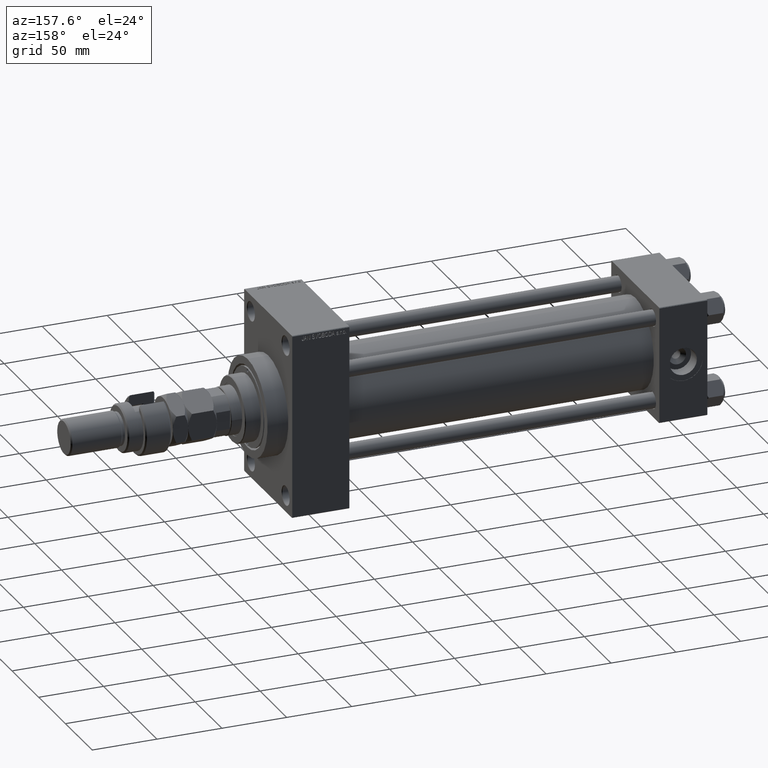
[diagram: clean part render]
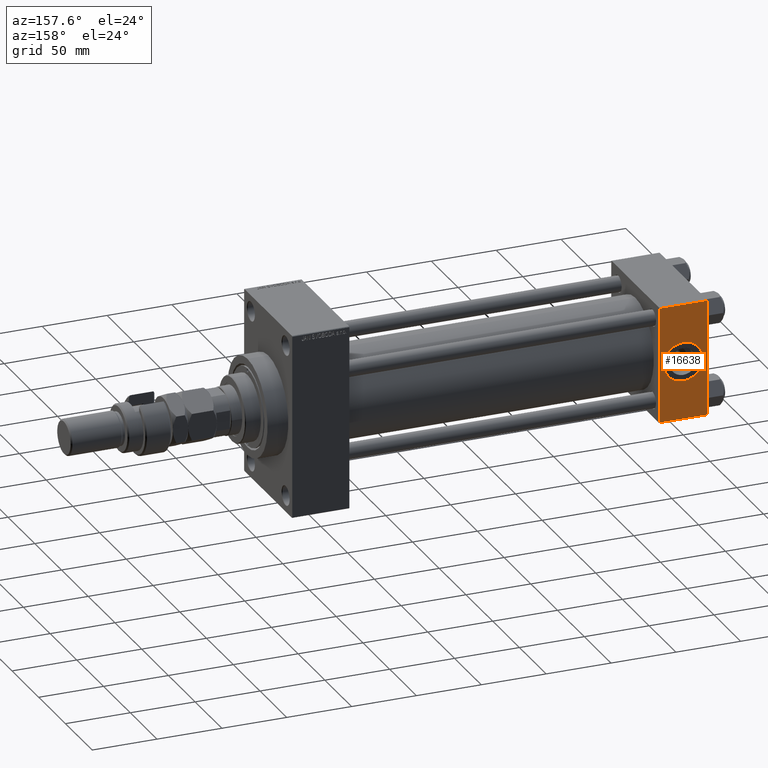
[diagram: same view with one face highlighted and labeled with its STEP entity id]
A machine part, auxiliary view. The second image highlights one B-rep face of the part: STEP entity #16638.
In plain terms, the highlighted planar face has unit normal (0, 1, 0).
Its self-contained STEP definition (entity closure, byte-faithful):
#325 = CARTESIAN_POINT ( 'NONE',  ( 37.00000000000000000, 44.99999999999998579, -44.49999999999998579 ) ) ;
#390 = VECTOR ( 'NONE', #7440, 1000.000000000000000 ) ;
#2074 = VERTEX_POINT ( 'NONE', #37824 ) ;
#2490 = CARTESIAN_POINT ( 'NONE',  ( 18.50000000000000355, 44.99999999999998579, -15.00000000000000178 ) ) ;
#2952 = CARTESIAN_POINT ( 'NONE',  ( 37.00000000000000000, 44.99999999999998579, 44.50000000000001421 ) ) ;
#4532 = ORIENTED_EDGE ( 'NONE', *, *, #22862, .F. ) ;
#6175 = EDGE_CURVE ( 'NONE', #11384, #22120, #46870, .T. ) ;
#7440 = DIRECTION ( 'NONE',  ( 0.000000000000000000, 0.000000000000000000, -1.000000000000000000 ) ) ;
#7862 = DIRECTION ( 'NONE',  ( -0.000000000000000000, 1.000000000000000000, 0.000000000000000000 ) ) ;
#8813 = CARTESIAN_POINT ( 'NONE',  ( 37.00000000000000000, 44.99999999999998579, 45.00000000000001421 ) ) ;
#10194 = DIRECTION ( 'NONE',  ( 0.000000000000000000, 1.000000000000000000, 0.000000000000000000 ) ) ;
#10828 = DIRECTION ( 'NONE',  ( 0.000000000000000000, 0.000000000000000000, -1.000000000000000000 ) ) ;
#11167 = AXIS2_PLACEMENT_3D ( 'NONE', #36715, #24775, #25281 ) ;
#11384 = VERTEX_POINT ( 'NONE', #49341 ) ;
#12165 = ORIENTED_EDGE ( 'NONE', *, *, #45161, .F. ) ;
#12627 = LINE ( 'NONE', #8813, #45452 ) ;
#14329 = DIRECTION ( 'NONE',  ( 1.000000000000000000, 0.000000000000000000, 0.000000000000000000 ) ) ;
#14824 = DIRECTION ( 'NONE',  ( -1.000000000000000000, 0.000000000000000000, 0.000000000000000000 ) ) ;
#15735 = CARTESIAN_POINT ( 'NONE',  ( 37.00000000000000000, 44.99999999999998579, 45.00000000000001421 ) ) ;
#16638 = ADVANCED_FACE ( 'NONE', ( #35090, #23392 ), #34838, .T. ) ;
#17676 = VERTEX_POINT ( 'NONE', #2490 ) ;
#18308 = AXIS2_PLACEMENT_3D ( 'NONE', #15735, #7862, #38895 ) ;
#20270 = VECTOR ( 'NONE', #14824, 1000.000000000000000 ) ;
#22120 = VERTEX_POINT ( 'NONE', #24398 ) ;
#22862 = EDGE_CURVE ( 'NONE', #31298, #17676, #28237, .T. ) ;
#23392 = FACE_OUTER_BOUND ( 'NONE', #45512, .T. ) ;
#24338 = LINE ( 'NONE', #39849, #390 ) ;
#24398 = CARTESIAN_POINT ( 'NONE',  ( 0.000000000000000000, 44.99999999999998579, -44.49999999999995737 ) ) ;
#24775 = DIRECTION ( 'NONE',  ( 0.000000000000000000, 1.000000000000000000, 0.000000000000000000 ) ) ;
#25281 = DIRECTION ( 'NONE',  ( 0.000000000000000000, 0.000000000000000000, 1.000000000000000000 ) ) ;
#25974 = DIRECTION ( 'NONE',  ( 0.000000000000000000, 0.000000000000000000, 1.000000000000000000 ) ) ;
#27730 = EDGE_CURVE ( 'NONE', #46339, #11384, #12627, .T. ) ;
#27962 = ORIENTED_EDGE ( 'NONE', *, *, #27730, .T. ) ;
#28237 = CIRCLE ( 'NONE', #11167, 15.00000000000000178 ) ;
#28781 = CARTESIAN_POINT ( 'NONE',  ( 18.50000000000000000, 44.99999999999998579, 0.000000000000000000 ) ) ;
#30621 = EDGE_LOOP ( 'NONE', ( #4532, #50114 ) ) ;
#31298 = VERTEX_POINT ( 'NONE', #48005 ) ;
#34186 = LINE ( 'NONE', #49949, #36647 ) ;
#34838 = PLANE ( 'NONE',  #18308 ) ;
#35090 = FACE_BOUND ( 'NONE', #30621, .T. ) ;
#36647 = VECTOR ( 'NONE', #14329, 1000.000000000000000 ) ;
#36715 = CARTESIAN_POINT ( 'NONE',  ( 18.50000000000000000, 44.99999999999998579, 0.000000000000000000 ) ) ;
#37377 = EDGE_CURVE ( 'NONE', #2074, #46339, #34186, .T. ) ;
#37824 = CARTESIAN_POINT ( 'NONE',  ( 0.000000000000000000, 44.99999999999998579, 44.50000000000001421 ) ) ;
#38895 = DIRECTION ( 'NONE',  ( 0.000000000000000000, -0.000000000000000000, 1.000000000000000000 ) ) ;
#39849 = CARTESIAN_POINT ( 'NONE',  ( 0.000000000000000000, 44.99999999999998579, 45.00000000000001421 ) ) ;
#40206 = CIRCLE ( 'NONE', #43478, 15.00000000000000178 ) ;
#40441 = ORIENTED_EDGE ( 'NONE', *, *, #37377, .T. ) ;
#42493 = ORIENTED_EDGE ( 'NONE', *, *, #6175, .T. ) ;
#43478 = AXIS2_PLACEMENT_3D ( 'NONE', #28781, #10194, #25974 ) ;
#45161 = EDGE_CURVE ( 'NONE', #2074, #22120, #24338, .T. ) ;
#45452 = VECTOR ( 'NONE', #10828, 1000.000000000000000 ) ;
#45512 = EDGE_LOOP ( 'NONE', ( #27962, #42493, #12165, #40441 ) ) ;
#46339 = VERTEX_POINT ( 'NONE', #2952 ) ;
#46870 = LINE ( 'NONE', #325, #20270 ) ;
#48005 = CARTESIAN_POINT ( 'NONE',  ( 18.50000000000000000, 44.99999999999998579, 15.00000000000000178 ) ) ;
#49341 = CARTESIAN_POINT ( 'NONE',  ( 37.00000000000000000, 44.99999999999998579, -44.49999999999995737 ) ) ;
#49612 = EDGE_CURVE ( 'NONE', #17676, #31298, #40206, .T. ) ;
#49949 = CARTESIAN_POINT ( 'NONE',  ( 37.00000000000000000, 44.99999999999998579, 44.50000000000001421 ) ) ;
#50114 = ORIENTED_EDGE ( 'NONE', *, *, #49612, .F. ) ;